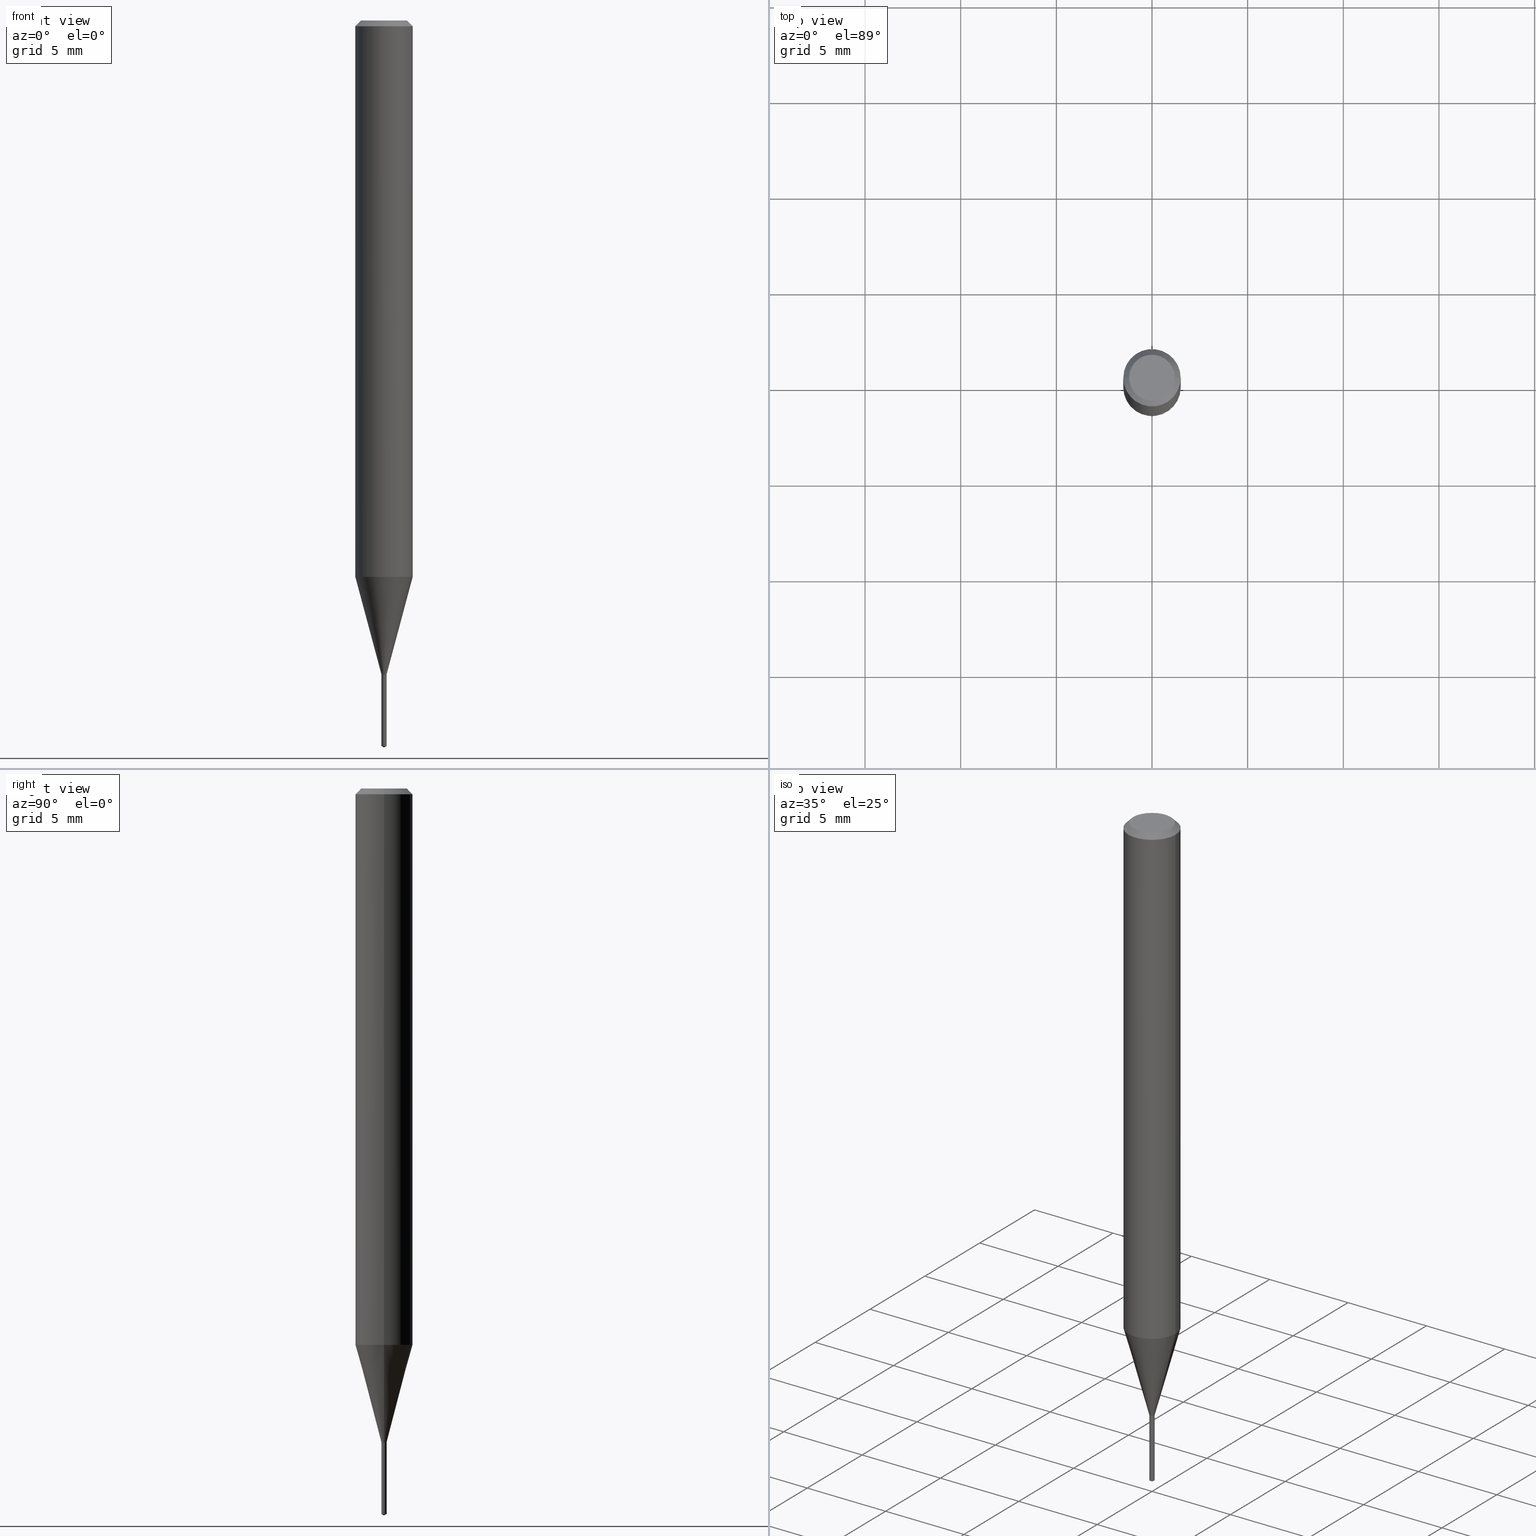
[diagram: canonical four-view strip — front | top / right | iso, engineering-drawing reading convention]
A machine part, canonical four-view strip (front | top / right | iso — engineering-drawing reading convention). The complete STEP part file that produces these views, byte-faithful:
ISO-10303-21;
HEADER;
FILE_DESCRIPTION (( 'STEP AP203' ),
    '1' );
FILE_NAME ('07403.STEP',
    '2024-04-23T21:05:39',
    ( '' ),
    ( '' ),
    'SwSTEP 2.0',
    'SolidWorks 2023',
    '' );
FILE_SCHEMA (( 'CONFIG_CONTROL_DESIGN' ));
ENDSEC;

DATA;
#1 = CARTESIAN_POINT ( 'NONE',  ( 3.907985046684202359E-17, 0.005499999999994788571, -1.492795266595348336 ) ) ;
#2 = EDGE_CURVE ( 'NONE', #397, #201, #355, .T. ) ;
#3 = CIRCLE ( 'NONE', #341, 0.05904999999999999832 ) ;
#4 = DIRECTION ( 'NONE',  ( -6.982962677686265922E-15, -1.000000000000000000, 0.000000000000000000 ) ) ;
#5 = SECURITY_CLASSIFICATION ( '', '', #149 ) ;
#6 = DIRECTION ( 'NONE',  ( -2.445468806185136877E-29, 3.491481338843145188E-15, 1.000000000000000000 ) ) ;
#7 = ORIENTED_EDGE ( 'NONE', *, *, #394, .F. ) ;
#8 = EDGE_CURVE ( 'NONE', #162, #111, #284, .T. ) ;
#9 = DIRECTION ( 'NONE',  ( 6.090539988449760292E-15, 0.8571673007021114454, 0.5150380749100557098 ) ) ;
#10 = EDGE_LOOP ( 'NONE', ( #13, #391, #46, #426 ) ) ;
#11 = CARTESIAN_POINT ( 'NONE',  ( -0.05904999999999999832, 3.711095515056362547E-16, -0.01181000000000006871 ) ) ;
#12 = CLOSED_SHELL ( 'NONE', ( #360, #465, #285, #128, #219, #255, #112, #197, #56, #238, #181, #151 ) ) ;
#13 = ORIENTED_EDGE ( 'NONE', *, *, #365, .T. ) ;
#14 = VECTOR ( 'NONE', #161, 39.37007874015748143 ) ;
#15 = CARTESIAN_POINT ( 'NONE',  ( 0.005499999999999999681, -3.840629472727445902E-17, 2.681897226687764826E-31 ) ) ;
#16 = ORIENTED_EDGE ( 'NONE', *, *, #243, .F. ) ;
#17 = DIRECTION ( 'NONE',  ( -0.7071067811865453523, 2.468850131082234184E-15, -0.7071067811865496822 ) ) ;
#18 = ORIENTED_EDGE ( 'NONE', *, *, #410, .F. ) ;
#19 = APPROVAL ( #403, 'UNSPECIFIED' ) ;
#20 = EDGE_LOOP ( 'NONE', ( #320, #143, #471, #127 ) ) ;
#21 = AXIS2_PLACEMENT_3D ( 'NONE', #66, #190, #486 ) ;
#22 = AXIS2_PLACEMENT_3D ( 'NONE', #280, #353, #430 ) ;
#23 = DIRECTION ( 'NONE',  ( -2.445468806185136597E-29, 3.491481338843145583E-15, 1.000000000000000000 ) ) ;
#24 = EDGE_CURVE ( 'NONE', #233, #134, #52, .T. ) ;
#25 = DATE_AND_TIME ( #135, #73 ) ;
#26 = EDGE_LOOP ( 'NONE', ( #406, #428, #178, #203 ) ) ;
#27 = COORDINATED_UNIVERSAL_TIME_OFFSET ( 5, 0, .BEHIND. ) ;
#28 = DIRECTION ( 'NONE',  ( -2.445468806185136597E-29, 3.491481338843145583E-15, 1.000000000000000000 ) ) ;
#29 = CIRCLE ( 'NONE', #191, 0.005500000000000004018 ) ;
#30 = ORIENTED_EDGE ( 'NONE', *, *, #410, .T. ) ;
#31 = DIRECTION ( 'NONE',  ( -2.445468806185136597E-29, 3.491481338843145583E-15, 1.000000000000000000 ) ) ;
#32 = FACE_OUTER_BOUND ( 'NONE', #370, .T. ) ;
#33 = AXIS2_PLACEMENT_3D ( 'NONE', #150, #490, #108 ) ;
#34 = DIRECTION ( 'NONE',  ( -2.445468806185136597E-29, 3.491481338843145583E-15, 1.000000000000000000 ) ) ;
#35 = CC_DESIGN_DATE_AND_TIME_ASSIGNMENT ( #250, #139, ( #110 ) ) ;
#36 = CARTESIAN_POINT ( 'NONE',  ( 0.05904999999999999832, -4.535783407291118600E-16, -0.01181000000000006871 ) ) ;
#37 = DIRECTION ( 'NONE',  ( 1.000000000000000000, -6.982962677686265922E-15, 4.876176775795936353E-29 ) ) ;
#38 = AXIS2_PLACEMENT_3D ( 'NONE', #361, #208, #245 ) ;
#39 = DIRECTION ( 'NONE',  ( 1.000000000000000000, -6.982962677686245411E-15, 0.000000000000000000 ) ) ;
#40 = ORIENTED_EDGE ( 'NONE', *, *, #273, .F. ) ;
#41 = DIRECTION ( 'NONE',  ( -2.445468806185136597E-29, 3.491481338843145583E-15, 1.000000000000000000 ) ) ;
#42 = EDGE_LOOP ( 'NONE', ( #48, #138, #84, #266 ) ) ;
#43 = CARTESIAN_POINT ( 'NONE',  ( 3.647745483005444042E-29, -5.216132104083308359E-15, -1.492795266595348336 ) ) ;
#44 = ORIENTED_EDGE ( 'NONE', *, *, #189, .T. ) ;
#45 = CARTESIAN_POINT ( 'NONE',  ( 0.000000000000000000, 0.000000000000000000, 0.000000000000000000 ) ) ;
#46 = ORIENTED_EDGE ( 'NONE', *, *, #69, .F. ) ;
#47 = DIRECTION ( 'NONE',  ( 1.000000000000000000, -6.982962677686336130E-15, 0.000000000000000000 ) ) ;
#48 = ORIENTED_EDGE ( 'NONE', *, *, #442, .T. ) ;
#49 = CC_DESIGN_PERSON_AND_ORGANIZATION_ASSIGNMENT ( #367, #405, ( #146 ) ) ;
#50 = LINE ( 'NONE', #257, #457 ) ;
#51 = DIRECTION ( 'NONE',  ( 1.000000000000000000, -6.982962677686245411E-15, 0.000000000000000000 ) ) ;
#52 = LINE ( 'NONE', #337, #223 ) ;
#53 = CONICAL_SURFACE ( 'NONE', #332, 0.05904999999999999832, 0.7853981633974452814 ) ;
#54 = CIRCLE ( 'NONE', #33, 0.005499999999999999681 ) ;
#55 = APPROVAL_PERSON_ORGANIZATION ( #230, #292, #339 ) ;
#56 = ADVANCED_FACE ( 'NONE', ( #224 ), #53, .T. ) ;
#57 = ORIENTED_EDGE ( 'NONE', *, *, #254, .T. ) ;
#58 = APPLICATION_PROTOCOL_DEFINITION ( 'international standard', 'config_control_design', 1994, #454 ) ;
#59 = DIRECTION ( 'NONE',  ( 1.000000000000000000, -6.982962677686266711E-15, 0.000000000000000000 ) ) ;
#60 =( NAMED_UNIT ( * ) PLANE_ANGLE_UNIT ( ) SI_UNIT ( $, .RADIAN. ) );
#61 = EDGE_CURVE ( 'NONE', #134, #140, #78, .T. ) ;
#62 = DIRECTION ( 'NONE',  ( 2.426064381555616261E-29, -3.519269579343880096E-15, -1.000000000000000000 ) ) ;
#63 = CONICAL_SURFACE ( 'NONE', #131, 0.005499999999999999681, 0.2617993877991499074 ) ;
#64 = CIRCLE ( 'NONE', #234, 0.004999999999999997502 ) ;
#65 = DIRECTION ( 'NONE',  ( -2.445468806185136597E-29, 3.491481338843145583E-15, 1.000000000000000000 ) ) ;
#66 = CARTESIAN_POINT ( 'NONE',  ( 3.292823747528286589E-29, -4.701279622752295282E-15, -1.346500000000000030 ) ) ;
#67 = EDGE_CURVE ( 'NONE', #274, #331, #216, .T. ) ;
#68 = DIRECTION ( 'NONE',  ( 1.000000000000000000, -6.982962677686245411E-15, 0.000000000000000000 ) ) ;
#69 = EDGE_CURVE ( 'NONE', #375, #274, #276, .T. ) ;
#70 = CC_DESIGN_DATE_AND_TIME_ASSIGNMENT ( #453, #446, ( #5 ) ) ;
#71 = VECTOR ( 'NONE', #424, 39.37007874015748854 ) ;
#72 = COORDINATED_UNIVERSAL_TIME_OFFSET ( 5, 0, .BEHIND. ) ;
#73 = LOCAL_TIME ( 17, 5, 39.00000000000000000, #248 ) ;
#74 = CARTESIAN_POINT ( 'NONE',  ( 0.004999999999999997502, -4.736194436140726931E-15, -1.346500000000000030 ) ) ;
#75 = SHAPE_DEFINITION_REPRESENTATION ( #325, #195 ) ;
#76 = DIRECTION ( 'NONE',  ( -2.426064381555616541E-29, 3.519269579343880096E-15, 1.000000000000000000 ) ) ;
#77 = LINE ( 'NONE', #11, #481 ) ;
#78 = CIRCLE ( 'NONE', #198, 0.005499999999999999681 ) ;
#79 = VECTOR ( 'NONE', #447, 39.37007874015748854 ) ;
#80 = CARTESIAN_POINT ( 'NONE',  ( -3.840629472724154257E-17, -0.005500000000004703384, -1.346500000000000030 ) ) ;
#81 = APPROVAL_PERSON_ORGANIZATION ( #220, #19, #371 ) ;
#82 = VERTEX_POINT ( 'NONE', #326 ) ;
#83 = FACE_OUTER_BOUND ( 'NONE', #435, .T. ) ;
#84 = ORIENTED_EDGE ( 'NONE', *, *, #144, .F. ) ;
#85 = CARTESIAN_POINT ( 'NONE',  ( -0.005499999999999999681, -4.658359142812762824E-15, -1.344799999999999773 ) ) ;
#86 = EDGE_LOOP ( 'NONE', ( #362, #359, #119, #431 ) ) ;
#87 = ADVANCED_FACE ( 'NONE', ( #335 ), #298, .F. ) ;
#88 = AXIS2_PLACEMENT_3D ( 'NONE', #445, #62, #289 ) ;
#89 = LINE ( 'NONE', #351, #215 ) ;
#90 = CONICAL_SURFACE ( 'NONE', #133, 0.05904999999999999832, 0.7853981633974452814 ) ;
#91 = EDGE_LOOP ( 'NONE', ( #211, #281, #342, #421 ) ) ;
#92 = CONICAL_SURFACE ( 'NONE', #310, 0.004999999999999997502, 0.7853981633975507526 ) ;
#93 = APPROVAL_ROLE ( '' ) ;
#94 = CARTESIAN_POINT ( 'NONE',  ( 3.292823747528286589E-29, -4.701279622752295282E-15, -1.346500000000000030 ) ) ;
#95 = CALENDAR_DATE ( 2024, 23, 4 ) ;
#96 = EDGE_CURVE ( 'NONE', #218, #375, #329, .T. ) ;
#97 = FACE_OUTER_BOUND ( 'NONE', #42, .T. ) ;
#98 = ADVANCED_FACE ( 'NONE', ( #97 ), #300, .T. ) ;
#99 = LENGTH_MEASURE_WITH_UNIT ( LENGTH_MEASURE( 0.02539999999999999897 ), #293 );
#100 = FACE_OUTER_BOUND ( 'NONE', #86, .T. ) ;
#101 = EDGE_LOOP ( 'NONE', ( #242, #166 ) ) ;
#102 = DIRECTION ( 'NONE',  ( -2.426064381555616541E-29, 3.519269579343880096E-15, 1.000000000000000000 ) ) ;
#103 = CARTESIAN_POINT ( 'NONE',  ( 0.004999999999999997502, -4.736194436140726931E-15, -1.346500000000000030 ) ) ;
#104 = PERSON_AND_ORGANIZATION ( #399, #296 ) ;
#105 = CARTESIAN_POINT ( 'NONE',  ( -0.005499999999999999681, -4.656264254009456230E-15, -1.344799999999999773 ) ) ;
#106 = AXIS2_PLACEMENT_3D ( 'NONE', #194, #65, #37 ) ;
#107 = LOCAL_TIME ( 17, 5, 39.00000000000000000, #72 ) ;
#108 = DIRECTION ( 'NONE',  ( 1.000000000000000000, -6.982962677686245411E-15, 0.000000000000000000 ) ) ;
#109 = CARTESIAN_POINT ( 'NONE',  ( 3.907985046684203591E-17, 0.005499999999995297713, -1.346500000000000030 ) ) ;
#110 = PRODUCT_DEFINITION ( 'UNKNOWN', '', #253, #386 ) ;
#111 = VERTEX_POINT ( 'NONE', #402 ) ;
#112 = ADVANCED_FACE ( 'NONE', ( #364 ), #63, .T. ) ;
#113 = DIMENSIONAL_EXPONENTS ( 1.000000000000000000, 0.000000000000000000, 0.000000000000000000, 0.000000000000000000, 0.000000000000000000, 0.000000000000000000, 0.000000000000000000 ) ;
#114 = DIRECTION ( 'NONE',  ( -0.2588190451025211836, 5.211531920934547886E-15, 0.9659258262890679791 ) ) ;
#115 = VECTOR ( 'NONE', #145, 39.37007874015748143 ) ;
#116 = CONICAL_SURFACE ( 'NONE', #182, 65.52281426576766421, 1.029744258676649205 ) ;
#117 = PERSON_AND_ORGANIZATION_ROLE ( 'classification_officer' ) ;
#118 = DIRECTION ( 'NONE',  ( -2.438088387897960049E-29, 3.491481338843145188E-15, 1.000000000000000000 ) ) ;
#119 = ORIENTED_EDGE ( 'NONE', *, *, #8, .F. ) ;
#120 = CYLINDRICAL_SURFACE ( 'NONE', #38, 0.05905000000000006771 ) ;
#121 = DIRECTION ( 'NONE',  ( -2.445468806185136597E-29, 3.491481338843145583E-15, 1.000000000000000000 ) ) ;
#122 = ORIENTED_EDGE ( 'NONE', *, *, #275, .T. ) ;
#123 = CYLINDRICAL_SURFACE ( 'NONE', #466, 0.005499999999999999681 ) ;
#124 = LOCAL_TIME ( 17, 5, 39.00000000000000000, #27 ) ;
#125 = ORIENTED_EDGE ( 'NONE', *, *, #165, .F. ) ;
#126 = DIRECTION ( 'NONE',  ( 1.000000000000000000, -6.982962677686336130E-15, 0.000000000000000000 ) ) ;
#127 = ORIENTED_EDGE ( 'NONE', *, *, #2, .T. ) ;
#128 = ADVANCED_FACE ( 'NONE', ( #100 ), #172, .T. ) ;
#129 = DIRECTION ( 'NONE',  ( -2.445468806185136597E-29, 3.491481338843145583E-15, 1.000000000000000000 ) ) ;
#130 = ORIENTED_EDGE ( 'NONE', *, *, #24, .F. ) ;
#131 = AXIS2_PLACEMENT_3D ( 'NONE', #251, #23, #477 ) ;
#132 = MECHANICAL_CONTEXT ( 'NONE', #423, 'mechanical' ) ;
#133 = AXIS2_PLACEMENT_3D ( 'NONE', #137, #290, #438 ) ;
#134 = VERTEX_POINT ( 'NONE', #109 ) ;
#135 = CALENDAR_DATE ( 2024, 23, 4 ) ;
#136 = CARTESIAN_POINT ( 'NONE',  ( 2.888098660104663328E-31, -4.123439461173779030E-17, -0.01181000000000006871 ) ) ;
#137 = CARTESIAN_POINT ( 'NONE',  ( 2.888098660104663328E-31, -4.123439461173779030E-17, -0.01181000000000006871 ) ) ;
#138 = ORIENTED_EDGE ( 'NONE', *, *, #24, .T. ) ;
#139 = DATE_TIME_ROLE ( 'creation_date' ) ;
#140 = VERTEX_POINT ( 'NONE', #417 ) ;
#141 = AXIS2_PLACEMENT_3D ( 'NONE', #387, #121, #39 ) ;
#142 = APPROVAL_DATE_TIME ( #482, #19 ) ;
#143 = ORIENTED_EDGE ( 'NONE', *, *, #472, .F. ) ;
#144 = EDGE_CURVE ( 'NONE', #140, #134, #412, .T. ) ;
#145 = DIRECTION ( 'NONE',  ( -2.445468806185136877E-29, 3.491481338843145188E-15, 1.000000000000000000 ) ) ;
#146 = PRODUCT ( '07403', '07403', '', ( #132 ) ) ;
#147 = DIRECTION ( 'NONE',  ( -0.7071067811866199593, 7.493145998870616062E-15, 0.7071067811864750752 ) ) ;
#148 = AXIS2_PLACEMENT_3D ( 'NONE', #450, #118, #152 ) ;
#149 = SECURITY_CLASSIFICATION_LEVEL ( 'unclassified' ) ;
#150 = CARTESIAN_POINT ( 'NONE',  ( 3.288666450557771176E-29, -4.695344104476262170E-15, -1.344799999999999773 ) ) ;
#151 = ADVANCED_FACE ( 'NONE', ( #308 ), #92, .T. ) ;
#152 = DIRECTION ( 'NONE',  ( 1.000000000000000000, -6.982962677686265922E-15, 4.876176775795935793E-29 ) ) ;
#153 = PLANE ( 'NONE',  #474 ) ;
#154 = ADVANCED_FACE ( 'NONE', ( #32 ), #323, .T. ) ;
#155 = VECTOR ( 'NONE', #114, 39.37007874015748854 ) ;
#156 = CARTESIAN_POINT ( 'NONE',  ( 3.629634921245357153E-29, -5.265179217656378894E-15, -1.496099999999999985 ) ) ;
#157 = CARTESIAN_POINT ( 'NONE',  ( -0.005499999999999999681, -4.658359142812762824E-15, -1.346000000000000085 ) ) ;
#158 = ORIENTED_EDGE ( 'NONE', *, *, #394, .T. ) ;
#159 = EDGE_CURVE ( 'NONE', #331, #111, #451, .T. ) ;
#160 = UNCERTAINTY_MEASURE_WITH_UNIT (LENGTH_MEASURE( 1.000000000000000082E-05 ), #409, 'distance_accuracy_value', 'NONE');
#161 = DIRECTION ( 'NONE',  ( -2.445468806185136877E-29, 3.491481338843145188E-15, 1.000000000000000000 ) ) ;
#162 = VERTEX_POINT ( 'NONE', #264 ) ;
#163 = CIRCLE ( 'NONE', #141, 0.005499999999999999681 ) ;
#164 = CARTESIAN_POINT ( 'NONE',  ( 3.292823747528286589E-29, -4.701279622752295282E-15, -1.346500000000000030 ) ) ;
#165 = EDGE_CURVE ( 'NONE', #318, #274, #226, .T. ) ;
#166 = ORIENTED_EDGE ( 'NONE', *, *, #61, .T. ) ;
#167 = EDGE_CURVE ( 'NONE', #256, #201, #192, .T. ) ;
#168 = FACE_OUTER_BOUND ( 'NONE', #10, .T. ) ;
#169 = ORIENTED_EDGE ( 'NONE', *, *, #8, .T. ) ;
#170 = APPLICATION_PROTOCOL_DEFINITION ( 'international standard', 'config_control_design', 1994, #423 ) ;
#171 = ORIENTED_EDGE ( 'NONE', *, *, #275, .F. ) ;
#172 = CONICAL_SURFACE ( 'NONE', #448, 0.005499999999999999681, 0.2617993877991499074 ) ;
#173 = VECTOR ( 'NONE', #147, 39.37007874015748143 ) ;
#174 = DIRECTION ( 'NONE',  ( -2.445468806185136597E-29, 3.491481338843145583E-15, 1.000000000000000000 ) ) ;
#175 = CARTESIAN_POINT ( 'NONE',  ( -0.04724000000000000421, 3.504923541997677355E-16, -3.380025165670481712E-19 ) ) ;
#176 = DIRECTION ( 'NONE',  ( -2.445468806185136597E-29, 3.491481338843145583E-15, 1.000000000000000000 ) ) ;
#177 = APPROVAL_DATE_TIME ( #25, #478 ) ;
#178 = ORIENTED_EDGE ( 'NONE', *, *, #259, .T. ) ;
#179 = DIRECTION ( 'NONE',  ( 1.000000000000000000, -6.982962677686266711E-15, 4.876185090822587894E-29 ) ) ;
#180 = DIRECTION ( 'NONE',  ( -2.426064381555616541E-29, 3.519269579343880096E-15, 1.000000000000000000 ) ) ;
#181 = ADVANCED_FACE ( 'NONE', ( #343 ), #301, .F. ) ;
#182 = AXIS2_PLACEMENT_3D ( 'NONE', #432, #102, #286 ) ;
#183 = CC_DESIGN_APPROVAL ( #478, ( #110 ) ) ;
#184 = MANIFOLD_SOLID_BREP ( 'Body-Move/Copy2[2]', #12 ) ;
#185 = ORIENTED_EDGE ( 'NONE', *, *, #328, .F. ) ;
#186 = MANIFOLD_SOLID_BREP ( 'Body-Move/Copy2[1]', #388 ) ;
#187 = DIRECTION ( 'NONE',  ( 1.000000000000000000, -6.982962677686266711E-15, 0.000000000000000000 ) ) ;
#188 = EDGE_CURVE ( 'NONE', #279, #331, #54, .T. ) ;
#189 = EDGE_CURVE ( 'NONE', #111, #162, #199, .T. ) ;
#190 = DIRECTION ( 'NONE',  ( -2.426064381555616541E-29, 3.519269579343880096E-15, 1.000000000000000000 ) ) ;
#191 = AXIS2_PLACEMENT_3D ( 'NONE', #414, #455, #4 ) ;
#192 = LINE ( 'NONE', #268, #434 ) ;
#193 = CALENDAR_DATE ( 2024, 23, 4 ) ;
#194 = CARTESIAN_POINT ( 'NONE',  ( 0.000000000000000000, 0.000000000000000000, 0.000000000000000000 ) ) ;
#195 = ADVANCED_BREP_SHAPE_REPRESENTATION ( '07403', ( #186, #184, #357 ), #382 ) ;
#196 = CYLINDRICAL_SURFACE ( 'NONE', #334, 0.05905000000000006771 ) ;
#197 = ADVANCED_FACE ( 'NONE', ( #303 ), #196, .T. ) ;
#198 = AXIS2_PLACEMENT_3D ( 'NONE', #479, #180, #411 ) ;
#199 = CIRCLE ( 'NONE', #244, 0.05905000000000014404 ) ;
#200 = LINE ( 'NONE', #470, #207 ) ;
#201 = VERTEX_POINT ( 'NONE', #36 ) ;
#202 = CARTESIAN_POINT ( 'NONE',  ( 3.292823747528286589E-29, -4.701279622752295282E-15, -1.346500000000000030 ) ) ;
#203 = ORIENTED_EDGE ( 'NONE', *, *, #189, .F. ) ;
#204 = EDGE_CURVE ( 'NONE', #233, #418, #29, .T. ) ;
#205 = DIRECTION ( 'NONE',  ( -2.426064381555616541E-29, 3.519269579343880096E-15, 1.000000000000000000 ) ) ;
#206 = EDGE_LOOP ( 'NONE', ( #169, #287, #350, #384 ) ) ;
#207 = VECTOR ( 'NONE', #6, 39.37007874015748143 ) ;
#208 = DIRECTION ( 'NONE',  ( -2.445468806185136597E-29, 3.491481338843145583E-15, 1.000000000000000000 ) ) ;
#209 = ORIENTED_EDGE ( 'NONE', *, *, #2, .F. ) ;
#210 = DIRECTION ( 'NONE',  ( -2.445468806185136597E-29, 3.491481338843145583E-15, 1.000000000000000000 ) ) ;
#211 = ORIENTED_EDGE ( 'NONE', *, *, #69, .T. ) ;
#212 = ORIENTED_EDGE ( 'NONE', *, *, #96, .T. ) ;
#213 = AXIS2_PLACEMENT_3D ( 'NONE', #136, #28, #59 ) ;
#214 = CARTESIAN_POINT ( 'NONE',  ( 0.000000000000000000, 0.000000000000000000, 0.000000000000000000 ) ) ;
#215 = VECTOR ( 'NONE', #9, 39.37007874015748854 ) ;
#216 = LINE ( 'NONE', #221, #115 ) ;
#217 = PERSON_AND_ORGANIZATION ( #399, #296 ) ;
#218 = VERTEX_POINT ( 'NONE', #74 ) ;
#219 = ADVANCED_FACE ( 'NONE', ( #229 ), #383, .T. ) ;
#220 = PERSON_AND_ORGANIZATION ( #399, #296 ) ;
#221 = CARTESIAN_POINT ( 'NONE',  ( -0.005499999999999999681, 3.907985046680550795E-17, -2.705414299640198099E-31 ) ) ;
#222 = FACE_OUTER_BOUND ( 'NONE', #400, .T. ) ;
#223 = VECTOR ( 'NONE', #485, 39.37007874015748143 ) ;
#224 = FACE_OUTER_BOUND ( 'NONE', #20, .T. ) ;
#225 = FACE_OUTER_BOUND ( 'NONE', #433, .T. ) ;
#226 = LINE ( 'NONE', #380, #173 ) ;
#227 = DIRECTION ( 'NONE',  ( -2.445468806185136597E-29, 3.491481338843145583E-15, 1.000000000000000000 ) ) ;
#228 = CIRCLE ( 'NONE', #269, 0.005499999999999999681 ) ;
#229 = FACE_OUTER_BOUND ( 'NONE', #91, .T. ) ;
#230 = PERSON_AND_ORGANIZATION ( #399, #296 ) ;
#231 = DIRECTION ( 'NONE',  ( 2.438088387897960049E-29, -3.491481338843145188E-15, -1.000000000000000000 ) ) ;
#232 = DIRECTION ( 'NONE',  ( -2.445468806185136597E-29, 3.491481338843145583E-15, 1.000000000000000000 ) ) ;
#233 = VERTEX_POINT ( 'NONE', #1 ) ;
#234 = AXIS2_PLACEMENT_3D ( 'NONE', #311, #319, #47 ) ;
#235 = CC_DESIGN_APPROVAL ( #292, ( #5 ) ) ;
#236 = DIRECTION ( 'NONE',  ( -2.426064381555616261E-29, 3.519269579343880096E-15, 1.000000000000000000 ) ) ;
#237 = EDGE_LOOP ( 'NONE', ( #125, #469, #212, #7 ) ) ;
#238 = ADVANCED_FACE ( 'NONE', ( #225 ), #153, .F. ) ;
#239 = CYLINDRICAL_SURFACE ( 'NONE', #381, 0.005500000000000001416 ) ;
#240 = ORIENTED_EDGE ( 'NONE', *, *, #204, .F. ) ;
#241 = DIRECTION ( 'NONE',  ( -6.982962677686265922E-15, -1.000000000000000000, 0.000000000000000000 ) ) ;
#242 = ORIENTED_EDGE ( 'NONE', *, *, #144, .T. ) ;
#243 = EDGE_CURVE ( 'NONE', #82, #418, #346, .T. ) ;
#244 = AXIS2_PLACEMENT_3D ( 'NONE', #456, #377, #270 ) ;
#245 = DIRECTION ( 'NONE',  ( 1.000000000000000000, -6.982962677686266711E-15, 4.876176775795936353E-29 ) ) ;
#246 = CC_DESIGN_SECURITY_CLASSIFICATION ( #5, ( #253 ) ) ;
#247 = ORIENTED_EDGE ( 'NONE', *, *, #61, .F. ) ;
#248 = COORDINATED_UNIVERSAL_TIME_OFFSET ( 5, 0, .BEHIND. ) ;
#249 = DIRECTION ( 'NONE',  ( -6.982962677686265922E-15, -1.000000000000000000, 0.000000000000000000 ) ) ;
#250 = DATE_AND_TIME ( #95, #324 ) ;
#251 = CARTESIAN_POINT ( 'NONE',  ( 3.288666450557771176E-29, -4.695344104476262170E-15, -1.344799999999999773 ) ) ;
#252 = CARTESIAN_POINT ( 'NONE',  ( 3.288666450557771176E-29, -4.695344104476262170E-15, -1.344799999999999773 ) ) ;
#253 = PRODUCT_DEFINITION_FORMATION_WITH_SPECIFIED_SOURCE ( 'ANY', '', #146, .NOT_KNOWN. ) ;
#254 = EDGE_CURVE ( 'NONE', #201, #397, #3, .T. ) ;
#255 = ADVANCED_FACE ( 'NONE', ( #338 ), #123, .T. ) ;
#256 = VERTEX_POINT ( 'NONE', #463 ) ;
#257 = CARTESIAN_POINT ( 'NONE',  ( -0.05905000000000006771, 4.195754854663396409E-16, -2.904631170795525045E-30 ) ) ;
#258 = ORIENTED_EDGE ( 'NONE', *, *, #204, .T. ) ;
#259 = EDGE_CURVE ( 'NONE', #279, #162, #427, .T. ) ;
#260 = AXIS2_PLACEMENT_3D ( 'NONE', #404, #174, #476 ) ;
#261 = DIRECTION ( 'NONE',  ( -6.982962677686264344E-15, -1.000000000000000000, 3.602282186708620887E-15 ) ) ;
#262 = VECTOR ( 'NONE', #236, 39.37007874015748143 ) ;
#263 = CALENDAR_DATE ( 2024, 23, 4 ) ;
#264 = CARTESIAN_POINT ( 'NONE',  ( 0.05905000000000014404, -4.409910893668218732E-15, -1.144948679254686352 ) ) ;
#265 = CARTESIAN_POINT ( 'NONE',  ( -9.185858275152708690E-28, 1.333261580947873260E-13, 37.87397874015748300 ) ) ;
#266 = ORIENTED_EDGE ( 'NONE', *, *, #395, .F. ) ;
#267 = COORDINATED_UNIVERSAL_TIME_OFFSET ( 5, 0, .BEHIND. ) ;
#268 = CARTESIAN_POINT ( 'NONE',  ( 0.05904999999999999832, -4.463468013801466955E-16, -0.01181000000000006871 ) ) ;
#269 = AXIS2_PLACEMENT_3D ( 'NONE', #392, #129, #461 ) ;
#270 = DIRECTION ( 'NONE',  ( 1.000000000000000000, -6.982962677686263555E-15, 0.000000000000000000 ) ) ;
#271 = FACE_OUTER_BOUND ( 'NONE', #206, .T. ) ;
#272 = LINE ( 'NONE', #80, #262 ) ;
#273 = EDGE_CURVE ( 'NONE', #318, #218, #449, .T. ) ;
#274 = VERTEX_POINT ( 'NONE', #157 ) ;
#275 = EDGE_CURVE ( 'NONE', #256, #473, #374, .T. ) ;
#276 = CIRCLE ( 'NONE', #309, 0.005499999999999999681 ) ;
#277 = APPROVAL_PERSON_ORGANIZATION ( #217, #478, #93 ) ;
#278 = DIRECTION ( 'NONE',  ( 1.000000000000000000, -6.982962677686265922E-15, 4.876176775795936353E-29 ) ) ;
#279 = VERTEX_POINT ( 'NONE', #312 ) ;
#280 = CARTESIAN_POINT ( 'NONE',  ( 8.265746106709734507E-48, -1.180129479067563789E-33, -3.380025165646692144E-19 ) ) ;
#281 = ORIENTED_EDGE ( 'NONE', *, *, #67, .T. ) ;
#282 = FACE_OUTER_BOUND ( 'NONE', #462, .T. ) ;
#283 = ORIENTED_EDGE ( 'NONE', *, *, #67, .F. ) ;
#284 = CIRCLE ( 'NONE', #260, 0.05905000000000014404 ) ;
#285 = ADVANCED_FACE ( 'NONE', ( #271 ), #120, .T. ) ;
#286 = DIRECTION ( 'NONE',  ( -6.982962677686264344E-15, -1.000000000000000000, 3.602282186708620887E-15 ) ) ;
#287 = ORIENTED_EDGE ( 'NONE', *, *, #459, .T. ) ;
#288 = COORDINATED_UNIVERSAL_TIME_OFFSET ( 5, 0, .BEHIND. ) ;
#289 = DIRECTION ( 'NONE',  ( 6.982962677686265922E-15, 1.000000000000000000, -3.519269579343880096E-15 ) ) ;
#290 = DIRECTION ( 'NONE',  ( 2.445468806185136597E-29, -3.491481338843145583E-15, -1.000000000000000000 ) ) ;
#291 = DIRECTION ( 'NONE',  ( 0.7071067811866199593, -2.468850131083015945E-15, 0.7071067811864750752 ) ) ;
#292 = APPROVAL ( #344, 'UNSPECIFIED' ) ;
#293 =( LENGTH_UNIT ( ) NAMED_UNIT ( * ) SI_UNIT ( $, .METRE. ) );
#294 = CIRCLE ( 'NONE', #356, 0.005500000000000004018 ) ;
#295 = CARTESIAN_POINT ( 'NONE',  ( 2.888098660104663328E-31, -4.123439461173779030E-17, -0.01181000000000006871 ) ) ;
#296 = ORGANIZATION ( 'UNSPECIFIED', 'UNSPECIFIED', '' ) ;
#297 = PERSON_AND_ORGANIZATION ( #399, #296 ) ;
#298 = PLANE ( 'NONE',  #88 ) ;
#299 = EDGE_CURVE ( 'NONE', #375, #279, #398, .T. ) ;
#300 = CYLINDRICAL_SURFACE ( 'NONE', #347, 0.005500000000000001416 ) ;
#301 = PLANE ( 'NONE',  #148 ) ;
#302 = AXIS2_PLACEMENT_3D ( 'NONE', #327, #363, #179 ) ;
#303 = FACE_OUTER_BOUND ( 'NONE', #352, .T. ) ;
#304 = ORIENTED_EDGE ( 'NONE', *, *, #472, .T. ) ;
#305 = DIRECTION ( 'NONE',  ( 1.000000000000000000, -6.982962677686266711E-15, 4.876176775795936353E-29 ) ) ;
#306 = ADVANCED_FACE ( 'NONE', ( #83 ), #239, .T. ) ;
#307 = PRODUCT_RELATED_PRODUCT_CATEGORY ( 'detail', '', ( #146 ) ) ;
#308 = FACE_OUTER_BOUND ( 'NONE', #237, .T. ) ;
#309 = AXIS2_PLACEMENT_3D ( 'NONE', #439, #176, #51 ) ;
#310 = AXIS2_PLACEMENT_3D ( 'NONE', #340, #227, #489 ) ;
#311 = CARTESIAN_POINT ( 'NONE',  ( 3.292823747528286589E-29, -4.701279622752295282E-15, -1.346500000000000030 ) ) ;
#312 = CARTESIAN_POINT ( 'NONE',  ( 0.005499999999999999681, -4.733750399203536037E-15, -1.344799999999999773 ) ) ;
#313 = ORIENTED_EDGE ( 'NONE', *, *, #378, .T. ) ;
#314 = CARTESIAN_POINT ( 'NONE',  ( 3.292823747528286589E-29, -4.701279622752295282E-15, -1.346500000000000030 ) ) ;
#315 = ORIENTED_EDGE ( 'NONE', *, *, #365, .F. ) ;
#316 = AXIS2_PLACEMENT_3D ( 'NONE', #164, #232, #126 ) ;
#317 = CARTESIAN_POINT ( 'NONE',  ( -3.840629472723801734E-17, -0.005500000000005221198, -1.492795266595348336 ) ) ;
#318 = VERTEX_POINT ( 'NONE', #425 ) ;
#319 = DIRECTION ( 'NONE',  ( -2.445468806185136597E-29, 3.491481338843145583E-15, 1.000000000000000000 ) ) ;
#320 = ORIENTED_EDGE ( 'NONE', *, *, #167, .F. ) ;
#321 = EDGE_CURVE ( 'NONE', #473, #397, #77, .T. ) ;
#322 = ORIENTED_EDGE ( 'NONE', *, *, #321, .F. ) ;
#323 = CONICAL_SURFACE ( 'NONE', #487, 65.52281426576766421, 1.029744258676649205 ) ;
#324 = LOCAL_TIME ( 17, 5, 39.00000000000000000, #288 ) ;
#325 = PRODUCT_DEFINITION_SHAPE ( 'NONE', 'NONE',  #110 ) ;
#326 = CARTESIAN_POINT ( 'NONE',  ( 3.629634921245357153E-29, -5.265179217656378894E-15, -1.496099999999999985 ) ) ;
#327 = CARTESIAN_POINT ( 'NONE',  ( 8.265746106709734507E-48, -1.180129479067563789E-33, -3.380025165646692144E-19 ) ) ;
#328 = EDGE_CURVE ( 'NONE', #331, #279, #163, .T. ) ;
#329 = LINE ( 'NONE', #103, #379 ) ;
#330 = PERSON_AND_ORGANIZATION_ROLE ( 'creator' ) ;
#331 = VERTEX_POINT ( 'NONE', #85 ) ;
#332 = AXIS2_PLACEMENT_3D ( 'NONE', #295, #483, #372 ) ;
#333 = CALENDAR_DATE ( 2024, 23, 4 ) ;
#334 = AXIS2_PLACEMENT_3D ( 'NONE', #345, #420, #305 ) ;
#335 = FACE_OUTER_BOUND ( 'NONE', #101, .T. ) ;
#336 = PERSON_AND_ORGANIZATION_ROLE ( 'design_supplier' ) ;
#337 = CARTESIAN_POINT ( 'NONE',  ( 3.907985046683844290E-17, 0.005499999999995299448, -1.346500000000000030 ) ) ;
#338 = FACE_OUTER_BOUND ( 'NONE', #452, .T. ) ;
#339 = APPROVAL_ROLE ( '' ) ;
#340 = CARTESIAN_POINT ( 'NONE',  ( 3.292823747528286589E-29, -4.701279622752295282E-15, -1.346500000000000030 ) ) ;
#341 = AXIS2_PLACEMENT_3D ( 'NONE', #376, #31, #187 ) ;
#342 = ORIENTED_EDGE ( 'NONE', *, *, #188, .F. ) ;
#343 = FACE_OUTER_BOUND ( 'NONE', #393, .T. ) ;
#344 = APPROVAL_STATUS ( 'not_yet_approved' ) ;
#345 = CARTESIAN_POINT ( 'NONE',  ( 0.000000000000000000, 0.000000000000000000, 0.000000000000000000 ) ) ;
#346 = LINE ( 'NONE', #156, #79 ) ;
#347 = AXIS2_PLACEMENT_3D ( 'NONE', #94, #368, #249 ) ;
#348 = AXIS2_PLACEMENT_3D ( 'NONE', #202, #210, #358 ) ;
#349 = DIRECTION ( 'NONE',  ( -6.982962677686265922E-15, -1.000000000000000000, 0.000000000000000000 ) ) ;
#350 = ORIENTED_EDGE ( 'NONE', *, *, #254, .F. ) ;
#351 = CARTESIAN_POINT ( 'NONE',  ( 3.682349261222435351E-29, -5.190345485987900417E-15, -1.496099999999999985 ) ) ;
#352 = EDGE_LOOP ( 'NONE', ( #389, #44, #313, #209 ) ) ;
#353 = DIRECTION ( 'NONE',  ( -2.445468806185136597E-29, 3.491481338843145583E-15, 1.000000000000000000 ) ) ;
#354 = ORIENTED_EDGE ( 'NONE', *, *, #299, .T. ) ;
#355 = CIRCLE ( 'NONE', #213, 0.05904999999999999832 ) ;
#356 = AXIS2_PLACEMENT_3D ( 'NONE', #43, #205, #241 ) ;
#357 = AXIS2_PLACEMENT_3D ( 'NONE', #214, #475, #407 ) ;
#358 = DIRECTION ( 'NONE',  ( 1.000000000000000000, -6.982962677686336130E-15, 0.000000000000000000 ) ) ;
#359 = ORIENTED_EDGE ( 'NONE', *, *, #159, .T. ) ;
#360 = ADVANCED_FACE ( 'NONE', ( #168 ), #440, .T. ) ;
#361 = CARTESIAN_POINT ( 'NONE',  ( 0.000000000000000000, 0.000000000000000000, 0.000000000000000000 ) ) ;
#362 = ORIENTED_EDGE ( 'NONE', *, *, #188, .T. ) ;
#363 = DIRECTION ( 'NONE',  ( -2.445468806185136597E-29, 3.491481338843145583E-15, 1.000000000000000000 ) ) ;
#364 = FACE_OUTER_BOUND ( 'NONE', #26, .T. ) ;
#365 = EDGE_CURVE ( 'NONE', #218, #318, #64, .T. ) ;
#366 = CC_DESIGN_PERSON_AND_ORGANIZATION_ASSIGNMENT ( #104, #336, ( #253 ) ) ;
#367 = PERSON_AND_ORGANIZATION ( #399, #296 ) ;
#368 = DIRECTION ( 'NONE',  ( -2.426064381555616541E-29, 3.519269579343880096E-15, 1.000000000000000000 ) ) ;
#369 = DIRECTION ( 'NONE',  ( -2.445468806185136877E-29, 3.491481338843145188E-15, 1.000000000000000000 ) ) ;
#370 = EDGE_LOOP ( 'NONE', ( #18, #441, #240 ) ) ;
#371 = APPROVAL_ROLE ( '' ) ;
#372 = DIRECTION ( 'NONE',  ( -1.000000000000000000, 6.982962677686266711E-15, 0.000000000000000000 ) ) ;
#373 = CIRCLE ( 'NONE', #302, 0.04724000000000000421 ) ;
#374 = CIRCLE ( 'NONE', #22, 0.04724000000000000421 ) ;
#375 = VERTEX_POINT ( 'NONE', #396 ) ;
#376 = CARTESIAN_POINT ( 'NONE',  ( 2.888098660104663328E-31, -4.123439461173779030E-17, -0.01181000000000006871 ) ) ;
#377 = DIRECTION ( 'NONE',  ( -2.445468806185136597E-29, 3.491481338843145583E-15, 1.000000000000000000 ) ) ;
#378 = EDGE_CURVE ( 'NONE', #162, #201, #200, .T. ) ;
#379 = VECTOR ( 'NONE', #291, 39.37007874015748143 ) ;
#380 = CARTESIAN_POINT ( 'NONE',  ( -0.004999999999999997502, -4.665752485964290241E-15, -1.346500000000000030 ) ) ;
#381 = AXIS2_PLACEMENT_3D ( 'NONE', #314, #460, #349 ) ;
#382 =( GEOMETRIC_REPRESENTATION_CONTEXT ( 3 ) GLOBAL_UNCERTAINTY_ASSIGNED_CONTEXT ( ( #160 ) ) GLOBAL_UNIT_ASSIGNED_CONTEXT ( ( #409, #60, #436 ) ) REPRESENTATION_CONTEXT ( 'NONE', 'WORKASPACE' ) );
#383 = CYLINDRICAL_SURFACE ( 'NONE', #106, 0.005499999999999999681 ) ;
#384 = ORIENTED_EDGE ( 'NONE', *, *, #378, .F. ) ;
#385 = DIRECTION ( 'NONE',  ( -1.000000000000000000, 6.982962677686265922E-15, -4.876176775795935793E-29 ) ) ;
#386 = DESIGN_CONTEXT ( 'detailed design', #454, 'design' ) ;
#387 = CARTESIAN_POINT ( 'NONE',  ( 3.288666450557771176E-29, -4.695344104476262170E-15, -1.344799999999999773 ) ) ;
#388 = CLOSED_SHELL ( 'NONE', ( #98, #443, #154, #306, #87 ) ) ;
#389 = ORIENTED_EDGE ( 'NONE', *, *, #459, .F. ) ;
#390 = CARTESIAN_POINT ( 'NONE',  ( -0.05904999999999999832, -1.599825185614950094E-15, -0.01181000000000006871 ) ) ;
#391 = ORIENTED_EDGE ( 'NONE', *, *, #165, .T. ) ;
#392 = CARTESIAN_POINT ( 'NONE',  ( 3.291601013125194348E-29, -4.699533882082873778E-15, -1.346000000000000085 ) ) ;
#393 = EDGE_LOOP ( 'NONE', ( #315, #40 ) ) ;
#394 = EDGE_CURVE ( 'NONE', #274, #375, #228, .T. ) ;
#395 = EDGE_CURVE ( 'NONE', #418, #140, #272, .T. ) ;
#396 = CARTESIAN_POINT ( 'NONE',  ( 0.005499999999999999681, -4.737940176810148435E-15, -1.346000000000000085 ) ) ;
#397 = VERTEX_POINT ( 'NONE', #390 ) ;
#398 = LINE ( 'NONE', #15, #14 ) ;
#399 = PERSON ( 'UNSPECIFIED', 'UNSPECIFIED', 'UNSPECIFIED', ('UNSPECIFIED'), ('UNSPECIFIED'), ('UNSPECIFIED') ) ;
#400 = EDGE_LOOP ( 'NONE', ( #171, #437, #57, #322 ) ) ;
#401 = PERSON_AND_ORGANIZATION ( #399, #296 ) ;
#402 = CARTESIAN_POINT ( 'NONE',  ( -0.05905000000000014404, -3.577991462084503530E-15, -1.144948679254686352 ) ) ;
#403 = APPROVAL_STATUS ( 'not_yet_approved' ) ;
#404 = CARTESIAN_POINT ( 'NONE',  ( 2.799936279800206478E-29, -3.997566947550843811E-15, -1.144948679254686352 ) ) ;
#405 = PERSON_AND_ORGANIZATION_ROLE ( 'design_owner' ) ;
#406 = ORIENTED_EDGE ( 'NONE', *, *, #159, .F. ) ;
#407 = DIRECTION ( 'NONE',  ( 1.000000000000000000, 0.000000000000000000, 0.000000000000000000 ) ) ;
#408 = ORIENTED_EDGE ( 'NONE', *, *, #395, .T. ) ;
#409 =( CONVERSION_BASED_UNIT ( 'INCH', #99 ) LENGTH_UNIT ( ) NAMED_UNIT ( #113 ) );
#410 = EDGE_CURVE ( 'NONE', #82, #233, #89, .T. ) ;
#411 = DIRECTION ( 'NONE',  ( -6.982962677686265922E-15, -1.000000000000000000, 0.000000000000000000 ) ) ;
#412 = CIRCLE ( 'NONE', #21, 0.005499999999999999681 ) ;
#413 = PERSON_AND_ORGANIZATION ( #399, #296 ) ;
#414 = CARTESIAN_POINT ( 'NONE',  ( 3.647745483005444042E-29, -5.216132104083308359E-15, -1.492795266595348336 ) ) ;
#415 = DIRECTION ( 'NONE',  ( 0.7071067811865453523, -7.319954787623248157E-15, -0.7071067811865496822 ) ) ;
#416 = CC_DESIGN_PERSON_AND_ORGANIZATION_ASSIGNMENT ( #413, #117, ( #5 ) ) ;
#417 = CARTESIAN_POINT ( 'NONE',  ( -3.840629472724153024E-17, -0.005500000000004700781, -1.346500000000000030 ) ) ;
#418 = VERTEX_POINT ( 'NONE', #317 ) ;
#419 = PERSON_AND_ORGANIZATION_ROLE ( 'creator' ) ;
#420 = DIRECTION ( 'NONE',  ( -2.445468806185136597E-29, 3.491481338843145583E-15, 1.000000000000000000 ) ) ;
#421 = ORIENTED_EDGE ( 'NONE', *, *, #299, .F. ) ;
#422 = CARTESIAN_POINT ( 'NONE',  ( 4.132873053354867254E-48, -5.900647395337818946E-34, -1.690012582823346072E-19 ) ) ;
#423 = APPLICATION_CONTEXT ( 'configuration controlled 3d designs of mechanical parts and assemblies' ) ;
#424 = DIRECTION ( 'NONE',  ( 0.2588190451025211836, 1.565188264969622559E-15, 0.9659258262890679791 ) ) ;
#425 = CARTESIAN_POINT ( 'NONE',  ( -0.004999999999999997502, -4.663103258790179829E-15, -1.346500000000000030 ) ) ;
#426 = ORIENTED_EDGE ( 'NONE', *, *, #96, .F. ) ;
#427 = LINE ( 'NONE', #468, #71 ) ;
#428 = ORIENTED_EDGE ( 'NONE', *, *, #328, .T. ) ;
#429 = CC_DESIGN_PERSON_AND_ORGANIZATION_ASSIGNMENT ( #297, #419, ( #253 ) ) ;
#430 = DIRECTION ( 'NONE',  ( 1.000000000000000000, -6.982962677686266711E-15, 4.876185090822587894E-29 ) ) ;
#431 = ORIENTED_EDGE ( 'NONE', *, *, #259, .F. ) ;
#432 = CARTESIAN_POINT ( 'NONE',  ( -9.185858275152708690E-28, 1.333261580947873260E-13, 37.87397874015748300 ) ) ;
#433 = EDGE_LOOP ( 'NONE', ( #304, #122 ) ) ;
#434 = VECTOR ( 'NONE', #415, 39.37007874015748143 ) ;
#435 = EDGE_LOOP ( 'NONE', ( #130, #258, #408, #247 ) ) ;
#436 =( NAMED_UNIT ( * ) SI_UNIT ( $, .STERADIAN. ) SOLID_ANGLE_UNIT ( ) );
#437 = ORIENTED_EDGE ( 'NONE', *, *, #167, .T. ) ;
#438 = DIRECTION ( 'NONE',  ( -1.000000000000000000, 6.982962677686266711E-15, 0.000000000000000000 ) ) ;
#439 = CARTESIAN_POINT ( 'NONE',  ( 3.291601013125194348E-29, -4.699533882082873778E-15, -1.346000000000000085 ) ) ;
#440 = CONICAL_SURFACE ( 'NONE', #316, 0.004999999999999997502, 0.7853981633975507526 ) ;
#441 = ORIENTED_EDGE ( 'NONE', *, *, #243, .T. ) ;
#442 = EDGE_CURVE ( 'NONE', #418, #233, #294, .T. ) ;
#443 = ADVANCED_FACE ( 'NONE', ( #282 ), #116, .T. ) ;
#444 = APPROVAL_STATUS ( 'not_yet_approved' ) ;
#445 = CARTESIAN_POINT ( 'NONE',  ( 3.292823747528286589E-29, -4.701279622752295282E-15, -1.346500000000000030 ) ) ;
#446 = DATE_TIME_ROLE ( 'classification_date' ) ;
#447 = DIRECTION ( 'NONE',  ( -5.985567269335922347E-15, -0.8571673007021076707, 0.5150380749100615940 ) ) ;
#448 = AXIS2_PLACEMENT_3D ( 'NONE', #252, #34, #68 ) ;
#449 = CIRCLE ( 'NONE', #348, 0.004999999999999997502 ) ;
#450 = CARTESIAN_POINT ( 'NONE',  ( 3.292823747528286589E-29, -4.701279622752295282E-15, -1.346500000000000030 ) ) ;
#451 = LINE ( 'NONE', #105, #155 ) ;
#452 = EDGE_LOOP ( 'NONE', ( #283, #158, #354, #185 ) ) ;
#453 = DATE_AND_TIME ( #193, #107 ) ;
#454 = APPLICATION_CONTEXT ( 'configuration controlled 3d designs of mechanical parts and assemblies' ) ;
#455 = DIRECTION ( 'NONE',  ( -2.426064381555616541E-29, 3.519269579343880096E-15, 1.000000000000000000 ) ) ;
#456 = CARTESIAN_POINT ( 'NONE',  ( 2.799936279800206478E-29, -3.997566947550843811E-15, -1.144948679254686352 ) ) ;
#457 = VECTOR ( 'NONE', #369, 39.37007874015748143 ) ;
#458 = LOCAL_TIME ( 17, 5, 39.00000000000000000, #267 ) ;
#459 = EDGE_CURVE ( 'NONE', #111, #397, #50, .T. ) ;
#460 = DIRECTION ( 'NONE',  ( -2.426064381555616541E-29, 3.519269579343880096E-15, 1.000000000000000000 ) ) ;
#461 = DIRECTION ( 'NONE',  ( 1.000000000000000000, -6.982962677686245411E-15, 0.000000000000000000 ) ) ;
#462 = EDGE_LOOP ( 'NONE', ( #16, #30, #464 ) ) ;
#463 = CARTESIAN_POINT ( 'NONE',  ( 0.04724000000000000421, -3.852183633974369345E-16, -3.380025165621689721E-19 ) ) ;
#464 = ORIENTED_EDGE ( 'NONE', *, *, #442, .F. ) ;
#465 = ADVANCED_FACE ( 'NONE', ( #222 ), #90, .T. ) ;
#466 = AXIS2_PLACEMENT_3D ( 'NONE', #45, #41, #278 ) ;
#467 = CC_DESIGN_APPROVAL ( #19, ( #253 ) ) ;
#468 = CARTESIAN_POINT ( 'NONE',  ( 0.005499999999999999681, -4.733750399203536037E-15, -1.344799999999999773 ) ) ;
#469 = ORIENTED_EDGE ( 'NONE', *, *, #273, .T. ) ;
#470 = CARTESIAN_POINT ( 'NONE',  ( 0.05905000000000006771, -4.123439461173745257E-16, 2.879382386107503723E-30 ) ) ;
#471 = ORIENTED_EDGE ( 'NONE', *, *, #321, .T. ) ;
#472 = EDGE_CURVE ( 'NONE', #473, #256, #373, .T. ) ;
#473 = VERTEX_POINT ( 'NONE', #175 ) ;
#474 = AXIS2_PLACEMENT_3D ( 'NONE', #422, #231, #385 ) ;
#475 = DIRECTION ( 'NONE',  ( 0.000000000000000000, 0.000000000000000000, 1.000000000000000000 ) ) ;
#476 = DIRECTION ( 'NONE',  ( 1.000000000000000000, -6.982962677686263555E-15, 0.000000000000000000 ) ) ;
#477 = DIRECTION ( 'NONE',  ( 1.000000000000000000, -6.982962677686245411E-15, 0.000000000000000000 ) ) ;
#478 = APPROVAL ( #444, 'UNSPECIFIED' ) ;
#479 = CARTESIAN_POINT ( 'NONE',  ( 3.292823747528286589E-29, -4.701279622752295282E-15, -1.346500000000000030 ) ) ;
#480 = CC_DESIGN_PERSON_AND_ORGANIZATION_ASSIGNMENT ( #401, #330, ( #110 ) ) ;
#481 = VECTOR ( 'NONE', #17, 39.37007874015748143 ) ;
#482 = DATE_AND_TIME ( #333, #124 ) ;
#483 = DIRECTION ( 'NONE',  ( 2.445468806185136597E-29, -3.491481338843145583E-15, -1.000000000000000000 ) ) ;
#484 = DATE_AND_TIME ( #263, #458 ) ;
#485 = DIRECTION ( 'NONE',  ( -2.426064381555616261E-29, 3.519269579343880096E-15, 1.000000000000000000 ) ) ;
#486 = DIRECTION ( 'NONE',  ( -6.982962677686265922E-15, -1.000000000000000000, 0.000000000000000000 ) ) ;
#487 = AXIS2_PLACEMENT_3D ( 'NONE', #265, #76, #261 ) ;
#488 = APPROVAL_DATE_TIME ( #484, #292 ) ;
#489 = DIRECTION ( 'NONE',  ( 1.000000000000000000, -6.982962677686336130E-15, 0.000000000000000000 ) ) ;
#490 = DIRECTION ( 'NONE',  ( -2.445468806185136597E-29, 3.491481338843145583E-15, 1.000000000000000000 ) ) ;
ENDSEC;
END-ISO-10303-21;
